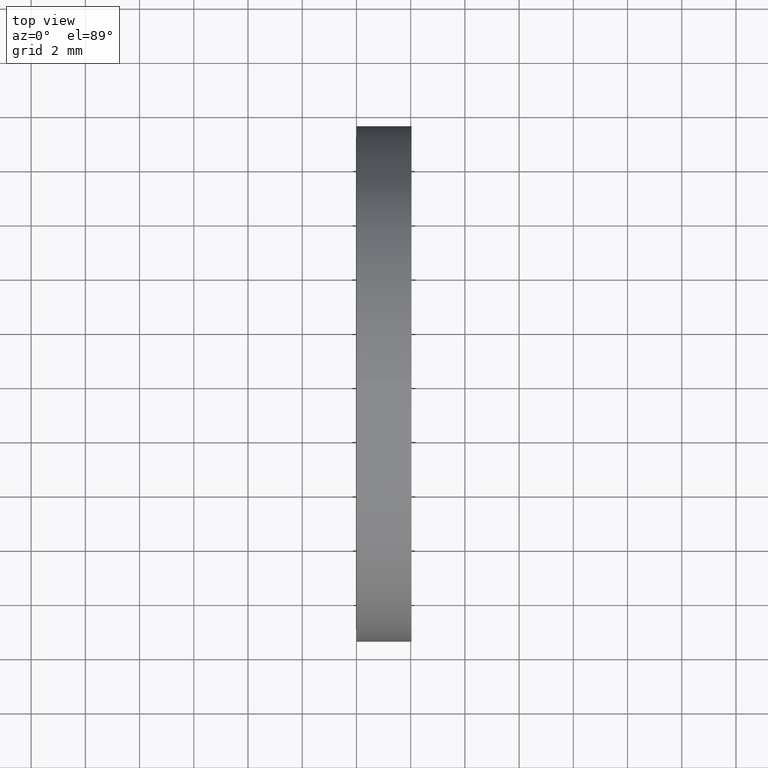
[diagram: clean part render]
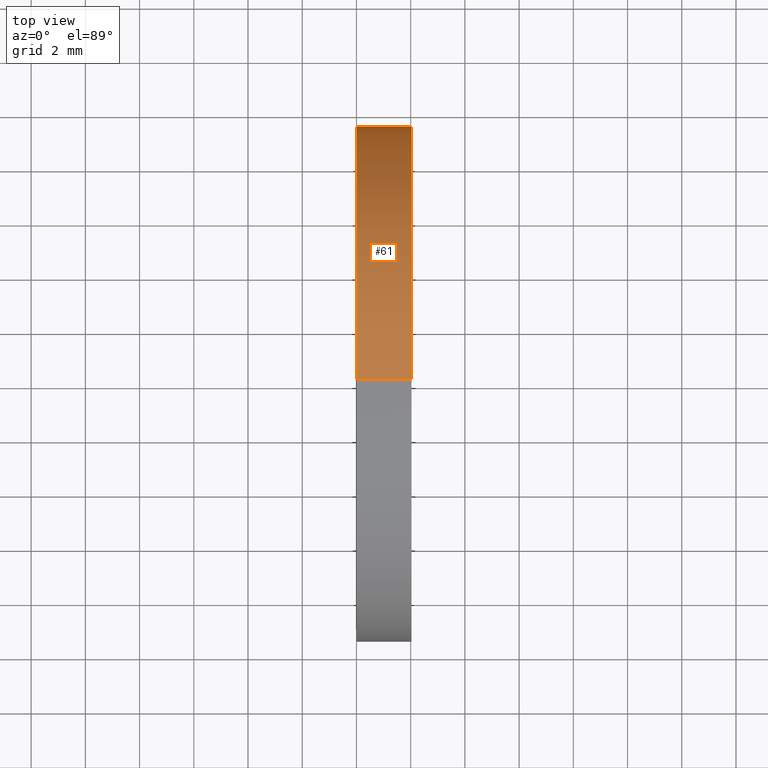
[diagram: same view with one face highlighted and labeled with its STEP entity id]
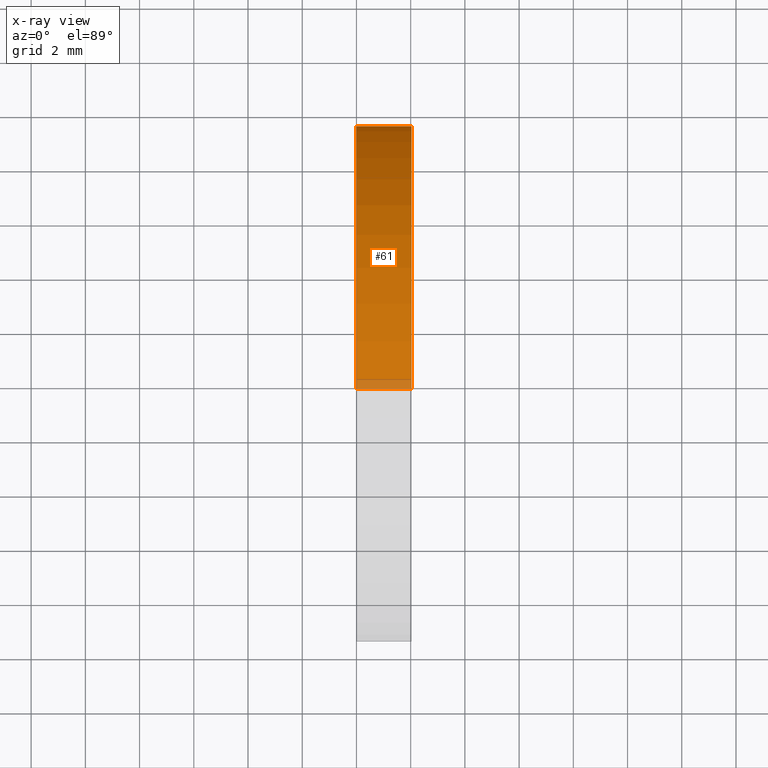
[diagram: x-ray of the same camera — body ghosted, the highlighted face saturated]
A machine part, top view. The second image highlights one B-rep face of the part: STEP entity #61.
The next image is the same camera in x-ray: the body ghosted, the highlighted face saturated — about 3% of this face is hidden behind the body in this view.
In plain terms, the highlighted cylindrical surface (partial cylindrical patch) has radius 9.525 mm, axis along (-1, 0, 0).
Its self-contained STEP definition (entity closure, byte-faithful):
#18 = ORIENTED_EDGE ( 'NONE', *, *, #19, .F. ) ;
#19 = EDGE_CURVE ( 'NONE', #63, #42, #73, .T. ) ;
#30 = ORIENTED_EDGE ( 'NONE', *, *, #39, .T. ) ;
#31 = EDGE_CURVE ( 'NONE', #63, #32, #85, .T. ) ;
#32 = VERTEX_POINT ( 'NONE', #86 ) ;
#36 = EDGE_CURVE ( 'NONE', #42, #40, #192, .T. ) ;
#39 = EDGE_CURVE ( 'NONE', #32, #40, #198, .T. ) ;
#40 = VERTEX_POINT ( 'NONE', #238 ) ;
#41 = ORIENTED_EDGE ( 'NONE', *, *, #36, .F. ) ;
#42 = VERTEX_POINT ( 'NONE', #237 ) ;
#48 = EDGE_LOOP ( 'NONE', ( #62, #30, #41, #18 ) ) ;
#61 = ADVANCED_FACE ( 'NONE', ( #167 ), #165, .T. ) ;
#62 = ORIENTED_EDGE ( 'NONE', *, *, #31, .T. ) ;
#63 = VERTEX_POINT ( 'NONE', #249 ) ;
#70 = DIRECTION ( 'NONE',  ( -1.000000000000000000, 0.0000000000000000000, 0.0000000000000000000 ) ) ;
#71 = VECTOR ( 'NONE', #70, 39.37007874015748100 ) ;
#72 = CARTESIAN_POINT ( 'NONE',  ( -1.721125226614714300, 0.0000000000000000000, 0.3750000000000000600 ) ) ;
#73 = LINE ( 'NONE', #72, #71 ) ;
#84 = AXIS2_PLACEMENT_3D ( 'NONE', #173, #204, #203 ) ;
#85 = CIRCLE ( 'NONE', #84, 0.3750000000000000600 ) ;
#86 = CARTESIAN_POINT ( 'NONE',  ( 0.07999999999999996000, 4.592425496802575500E-017, -0.3750000000000000600 ) ) ;
#165 = CYLINDRICAL_SURFACE ( 'NONE', #252, 0.3750000000000000600 ) ;
#166 = CARTESIAN_POINT ( 'NONE',  ( -1.721125226614714300, 0.0000000000000000000, 0.0000000000000000000 ) ) ;
#167 = FACE_OUTER_BOUND ( 'NONE', #48, .T. ) ;
#173 = CARTESIAN_POINT ( 'NONE',  ( 0.07999999999999996000, 0.0000000000000000000, 0.0000000000000000000 ) ) ;
#192 = CIRCLE ( 'NONE', #208, 0.3750000000000000600 ) ;
#198 = LINE ( 'NONE', #225, #224 ) ;
#203 = DIRECTION ( 'NONE',  ( 0.0000000000000000000, 0.0000000000000000000, 1.000000000000000000 ) ) ;
#204 = DIRECTION ( 'NONE',  ( -1.000000000000000000, 0.0000000000000000000, 0.0000000000000000000 ) ) ;
#205 = DIRECTION ( 'NONE',  ( 0.0000000000000000000, 0.0000000000000000000, 1.000000000000000000 ) ) ;
#206 = DIRECTION ( 'NONE',  ( -1.000000000000000000, 0.0000000000000000000, 0.0000000000000000000 ) ) ;
#207 = CARTESIAN_POINT ( 'NONE',  ( 0.0000000000000000000, 0.0000000000000000000, 0.0000000000000000000 ) ) ;
#208 = AXIS2_PLACEMENT_3D ( 'NONE', #207, #206, #205 ) ;
#223 = DIRECTION ( 'NONE',  ( -1.000000000000000000, 0.0000000000000000000, 0.0000000000000000000 ) ) ;
#224 = VECTOR ( 'NONE', #223, 39.37007874015748100 ) ;
#225 = CARTESIAN_POINT ( 'NONE',  ( -1.721125226614714300, 4.592425496802575500E-017, -0.3750000000000000600 ) ) ;
#237 = CARTESIAN_POINT ( 'NONE',  ( 0.0000000000000000000, 0.0000000000000000000, 0.3750000000000000600 ) ) ;
#238 = CARTESIAN_POINT ( 'NONE',  ( 0.0000000000000000000, 4.592425496802575500E-017, -0.3750000000000000600 ) ) ;
#249 = CARTESIAN_POINT ( 'NONE',  ( 0.07999999999999996000, 0.0000000000000000000, 0.3750000000000000600 ) ) ;
#250 = DIRECTION ( 'NONE',  ( 0.0000000000000000000, 0.0000000000000000000, 1.000000000000000000 ) ) ;
#251 = DIRECTION ( 'NONE',  ( -1.000000000000000000, 0.0000000000000000000, 0.0000000000000000000 ) ) ;
#252 = AXIS2_PLACEMENT_3D ( 'NONE', #166, #251, #250 ) ;